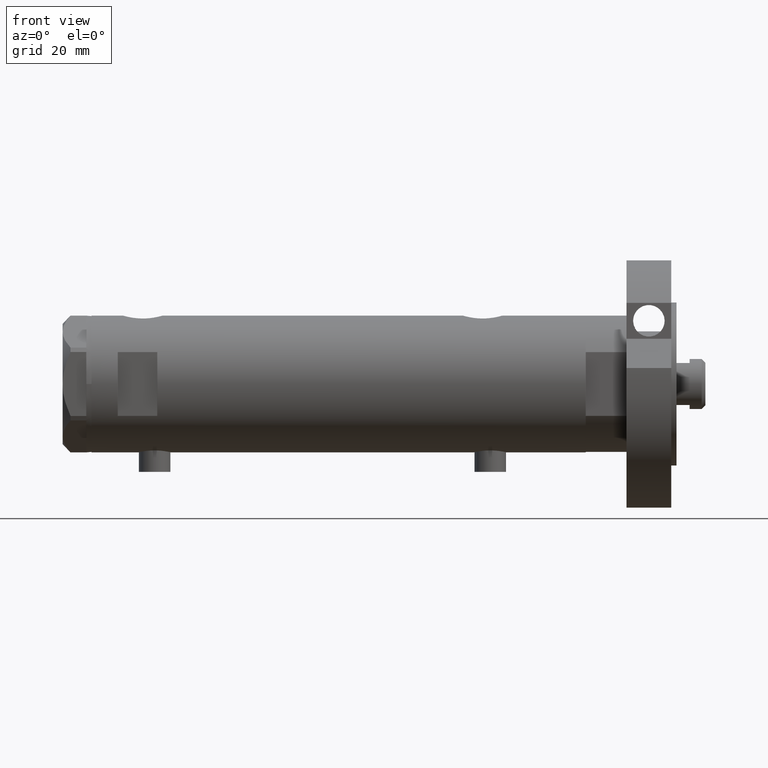
[diagram: clean part render]
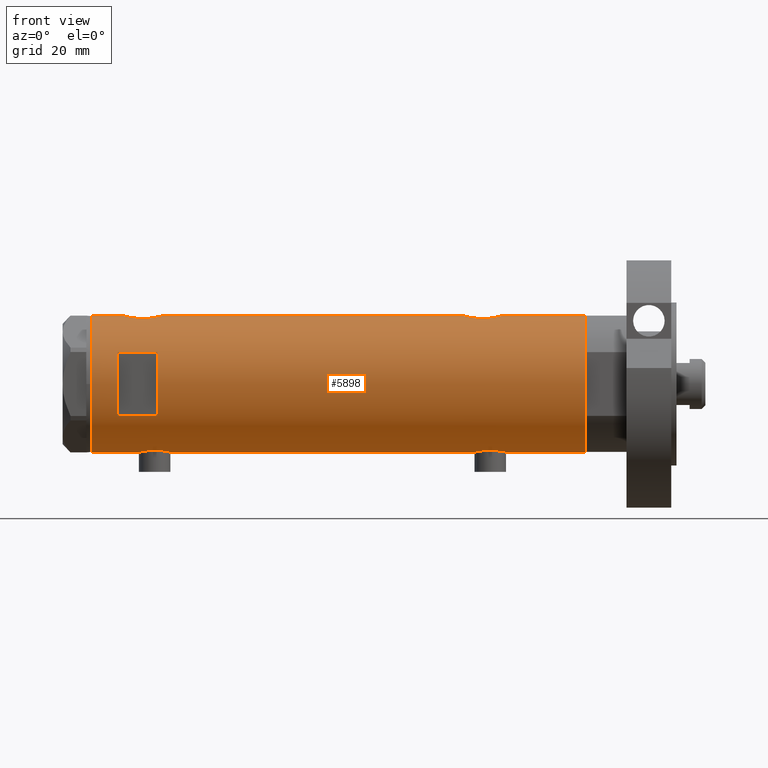
[diagram: same view with one face highlighted and labeled with its STEP entity id]
A machine part, front view. The second image highlights one B-rep face of the part: STEP entity #5898.
In plain terms, the highlighted cylindrical surface (partial cylindrical patch) has radius 26 mm, axis along (-1, -0, 0).
Its self-contained STEP definition (entity closure, byte-faithful):
#56 = EDGE_CURVE ( 'NONE', #3901, #803, #4986, .T. ) ;
#107 = CARTESIAN_POINT ( 'NONE',  ( -25.59645788645699227, -4.565358797148518555, 74.22330529203480864 ) ) ;
#108 = CARTESIAN_POINT ( 'NONE',  ( -26.00000000000000711, -0.4086738135806026739, -63.90000000000002700 ) ) ;
#125 = CARTESIAN_POINT ( 'NONE',  ( 26.00000000000001066, -0.4910237949823165748, 81.95000000000001705 ) ) ;
#186 = CARTESIAN_POINT ( 'NONE',  ( 25.52567976009756379, -4.956266804246106439, 80.10019927459092060 ) ) ;
#201 = DIRECTION ( 'NONE',  ( 0.000000000000000000, 0.000000000000000000, 1.000000000000000000 ) ) ;
#202 = CARTESIAN_POINT ( 'NONE',  ( -26.00000000000000355, -0.4144764235405725139, -51.39999999999999147 ) ) ;
#216 = ORIENTED_EDGE ( 'NONE', *, *, #5786, .F. ) ;
#227 = CARTESIAN_POINT ( 'NONE',  ( -26.00000000000000355, 3.184077527325983904E-15, 63.70000000000000995 ) ) ;
#252 = VERTEX_POINT ( 'NONE', #5235 ) ;
#266 = CARTESIAN_POINT ( 'NONE',  ( 26.00000000000000355, 0.000000000000000000, 93.95000000000000284 ) ) ;
#286 = CARTESIAN_POINT ( 'NONE',  ( -26.00000000000000355, 3.184081677783118585E-15, -93.95000000000000284 ) ) ;
#308 = CARTESIAN_POINT ( 'NONE',  ( -25.87202607293667000, -2.583404329177994008, -63.34473666854513141 ) ) ;
#343 = ORIENTED_EDGE ( 'NONE', *, *, #4487, .F. ) ;
#414 = CARTESIAN_POINT ( 'NONE',  ( 25.59500516383205948, -4.575229401795803952, 68.50212244934583339 ) ) ;
#427 = CARTESIAN_POINT ( 'NONE',  ( 24.91324908721445652, -7.438459228814655155, -53.75982500625809024 ) ) ;
#458 = CARTESIAN_POINT ( 'NONE',  ( 24.89475831528845262, -7.500067228253130658, -55.24337428253536331 ) ) ;
#463 = CARTESIAN_POINT ( 'NONE',  ( -25.85288666140180069, -2.767917424206677524, 64.34257790010329359 ) ) ;
#576 = VERTEX_POINT ( 'NONE', #4445 ) ;
#588 = CARTESIAN_POINT ( 'NONE',  ( -25.24022290516698774, -6.239518219915429320, 69.53402784061570685 ) ) ;
#603 = EDGE_CURVE ( 'NONE', #4427, #4972, #5481, .T. ) ;
#625 = CARTESIAN_POINT ( 'NONE',  ( -25.31551596256916525, -5.928819821281963165, 67.92988508095919542 ) ) ;
#640 = EDGE_CURVE ( 'NONE', #3102, #757, #5528, .T. ) ;
#693 = CARTESIAN_POINT ( 'NONE',  ( -25.85288666140180069, -2.767917424206677968, -63.25742209989670783 ) ) ;
#727 = CARTESIAN_POINT ( 'NONE',  ( -25.95206678899177888, -1.628763264760264118, -51.60199186669784410 ) ) ;
#757 = VERTEX_POINT ( 'NONE', #5266 ) ;
#765 = CARTESIAN_POINT ( 'NONE',  ( 25.89059789403177447, -2.425642437452257383, -47.63622552757698969 ) ) ;
#786 = CARTESIAN_POINT ( 'NONE',  ( 25.17510548814052740, -6.503212750695460009, 78.21761787815347589 ) ) ;
#801 = CARTESIAN_POINT ( 'NONE',  ( -25.52274351135604391, -4.960534548086211970, -53.84248254659268440 ) ) ;
#803 = VERTEX_POINT ( 'NONE', #227 ) ;
#810 = EDGE_CURVE ( 'NONE', #4618, #2848, #2136, .T. ) ;
#814 = CARTESIAN_POINT ( 'NONE',  ( 25.52449676677459678, -4.953491517965891155, 68.81325508665931068 ) ) ;
#817 = DIRECTION ( 'NONE',  ( -0.000000000000000000, -4.625929269271486900E-15, 1.000000000000000000 ) ) ;
#850 = EDGE_CURVE ( 'NONE', #576, #2848, #4231, .T. ) ;
#852 = CARTESIAN_POINT ( 'NONE',  ( 26.00000000000000355, -2.747580718823405516E-15, 66.95000000000000284 ) ) ;
#857 = VERTEX_POINT ( 'NONE', #3882 ) ;
#884 = CARTESIAN_POINT ( 'NONE',  ( 25.11342038069226845, -6.734617143597199984, 77.78770695790493050 ) ) ;
#888 = EDGE_LOOP ( 'NONE', ( #216, #4789, #6417, #3736, #6316, #2789, #4370, #2079, #5296, #6446, #6039, #6016 ) ) ;
#908 = CARTESIAN_POINT ( 'NONE',  ( 26.00000000000000711, -0.4982617809740558790, 66.95000000000001705 ) ) ;
#917 = CARTESIAN_POINT ( 'NONE',  ( 24.92415241886515176, -7.401968919186680651, -53.51676462555185054 ) ) ;
#952 = CARTESIAN_POINT ( 'NONE',  ( -25.78943824387523520, -3.306687742228914484, 64.64245861216537037 ) ) ;
#1000 = DIRECTION ( 'NONE',  ( 0.000000000000000000, 0.000000000000000000, 1.000000000000000000 ) ) ;
#1037 = DIRECTION ( 'NONE',  ( 1.000000000000000000, 0.000000000000000000, 0.000000000000000000 ) ) ;
#1089 = CARTESIAN_POINT ( 'NONE',  ( -25.38662204309616399, -5.616507264474307703, 72.72199377719323365 ) ) ;
#1090 = DIRECTION ( 'NONE',  ( 0.000000000000000000, 0.000000000000000000, 1.000000000000000000 ) ) ;
#1119 = CARTESIAN_POINT ( 'NONE',  ( -25.25769689814630325, -6.168504065326069430, 68.92353364703252794 ) ) ;
#1210 = CARTESIAN_POINT ( 'NONE',  ( 26.00000000000000355, -3.975028449552882818E-20, 81.94999999999998863 ) ) ;
#1217 = VERTEX_POINT ( 'NONE', #1630 ) ;
#1224 = CARTESIAN_POINT ( 'NONE',  ( -25.81160981652327635, -3.129523010631801938, -63.06392973722074657 ) ) ;
#1239 = CARTESIAN_POINT ( 'NONE',  ( -12.12435565298214080, -23.00000000000000355, 68.94999999999998863 ) ) ;
#1258 = CARTESIAN_POINT ( 'NONE',  ( 26.00000000000000355, 0.000000000000000000, -93.95000000000000284 ) ) ;
#1259 = CARTESIAN_POINT ( 'NONE',  ( -25.23758491649666880, -6.250144606721711682, -57.23988300428195686 ) ) ;
#1275 = CIRCLE ( 'NONE', #5271, 26.00000000000000355 ) ;
#1282 = CARTESIAN_POINT ( 'NONE',  ( 25.03461301890608226, -7.019803056070506031, 71.79816816893104203 ) ) ;
#1314 = CARTESIAN_POINT ( 'NONE',  ( 25.17393786935995692, -6.507882790539422757, 70.68962666655967553 ) ) ;
#1327 = CARTESIAN_POINT ( 'NONE',  ( -25.59645788645699582, -4.565358797148525660, -53.37669470796521409 ) ) ;
#1342 = CARTESIAN_POINT ( 'NONE',  ( 24.89478872726945724, -7.499966281647698629, 74.69821850634782834 ) ) ;
#1347 = VECTOR ( 'NONE', #3616, 1000.000000000000000 ) ;
#1355 = CARTESIAN_POINT ( 'NONE',  ( 25.98569226047905190, -0.9886551788957271825, -62.20082376600176133 ) ) ;
#1389 = CARTESIAN_POINT ( 'NONE',  ( 26.00000000000000355, 3.343657407582877388E-16, -62.25000000000000000 ) ) ;
#1392 = ORIENTED_EDGE ( 'NONE', *, *, #640, .F. ) ;
#1405 = CARTESIAN_POINT ( 'NONE',  ( 25.27534302296962565, -6.097250460344746159, 78.82409613097077283 ) ) ;
#1407 = B_SPLINE_CURVE_WITH_KNOTS ( 'NONE', 3,
 ( #4457, #6449, #3960, #5953, #1446, #4975, #463, #2476, #952, #2970, #6476, #1977, #4057, #5033, #4517, #625, #1545, #1119, #6084, #588, #3131, #6152, #4085, #2605, #6052, #1089, #5069, #3067, #1514, #2544, #107, #4157, #4551, #3498, #3032, #2012, #5591, #4651, #5493, #5621, #2508, #3558 ),
 .UNSPECIFIED., .F., .F.,
 ( 4, 2, 2, 2, 2, 2, 2, 2, 2, 2, 2, 2, 2, 2, 2, 2, 2, 2, 2, 2, 4 ),
 ( 0.01961238453869444676, 0.02083783025472769543, 0.02206327597076094410, 0.02267599882877755976, 0.02328872168679417543, 0.02451416740282743104, 0.02573961311886067971, 0.02696505883489393532, 0.02819050455092719093, 0.02880322740894379618, 0.02941595026696040144, 0.03064139598299361195, 0.03186684169902682245, 0.03309228741506003296, 0.03370501027307663822, 0.03431773313109324347, 0.03493045598910984872, 0.03554317884712646092, 0.03676862456315967143, 0.03799407027919288193, 0.03921951599522609938 ),
 .UNSPECIFIED. ) ;
#1416 = CARTESIAN_POINT ( 'NONE',  ( 25.52567976009756379, -4.956266804246105551, -49.09980072540905383 ) ) ;
#1424 = EDGE_CURVE ( 'NONE', #4972, #1987, #5353, .T. ) ;
#1446 = CARTESIAN_POINT ( 'NONE',  ( -25.92425332714051933, -2.018894156999441858, 64.02103879324673130 ) ) ;
#1465 = VECTOR ( 'NONE', #3996, 1000.000000000000000 ) ;
#1467 = CARTESIAN_POINT ( 'NONE',  ( -26.00000000000000355, 3.184081677783118585E-15, -93.95000000000000284 ) ) ;
#1473 = CARTESIAN_POINT ( 'NONE',  ( 25.52449676677459678, -4.953491517965876945, -60.38674491334074190 ) ) ;
#1514 = CARTESIAN_POINT ( 'NONE',  ( -25.52274351135604746, -4.960534548086194206, 73.75751745340734544 ) ) ;
#1545 = CARTESIAN_POINT ( 'NONE',  ( -25.28680988956730147, -6.048472998962280300, 68.32372305811757940 ) ) ;
#1570 = CARTESIAN_POINT ( 'NONE',  ( 0.000000000000000000, 0.000000000000000000, 83.95000000000000284 ) ) ;
#1579 = DIRECTION ( 'NONE',  ( 0.000000000000000000, 0.000000000000000000, 1.000000000000000000 ) ) ;
#1581 = DIRECTION ( 'NONE',  ( 0.000000000000000000, 0.000000000000000000, 1.000000000000000000 ) ) ;
#1630 = CARTESIAN_POINT ( 'NONE',  ( 12.12435565298214080, -23.00000000000000355, 68.94999999999998863 ) ) ;
#1687 = CARTESIAN_POINT ( 'NONE',  ( -25.31551596256916170, -5.928819821281962277, -59.67011491904084153 ) ) ;
#1725 = CARTESIAN_POINT ( 'NONE',  ( -25.85385060263651269, -2.778671585188182913, -52.03685548695762719 ) ) ;
#1742 = CARTESIAN_POINT ( 'NONE',  ( 25.78993643992928853, -3.329561377902403585, 81.18821560278736627 ) ) ;
#1755 = CARTESIAN_POINT ( 'NONE',  ( -25.57228991600092627, -4.705691472451703383, -61.78339690124654027 ) ) ;
#1773 = CARTESIAN_POINT ( 'NONE',  ( 24.91324908721446008, -7.438459228814657820, 75.44017499374190550 ) ) ;
#1789 = B_SPLINE_CURVE_WITH_KNOTS ( 'NONE', 3,
 ( #4261, #3270, #6261, #5280, #765, #2782, #3983, #5976, #1416, #2387, #2413, #2363, #4856, #2908, #4450, #4889, #3407, #917, #427, #4420, #6384, #458, #6444, #3430, #6414, #5347, #5431, #6357, #5454, #5858, #2963, #5893, #1473, #4913, #1916, #3373, #1945, #5380, #5926, #1355, #6468, #1389 ),
 .UNSPECIFIED., .F., .F.,
 ( 4, 2, 2, 2, 2, 2, 2, 2, 2, 2, 2, 2, 2, 2, 2, 2, 2, 2, 2, 2, 4 ),
 ( 0.02357432247332888128, 0.02504731828495719570, 0.02652031409658551359, 0.02799330990821382800, 0.02946630571984214589, 0.03020280362565630136, 0.03093930153147046030, 0.03241229734309879207, 0.03388529315472712383, 0.03462179106054129318, 0.03535828896635545560, 0.03683128477798380818, 0.03756778268379799834, 0.03830428058961218157, 0.03977727640124056885, 0.04125027221286896306, 0.04198677011868315323, 0.04272326802449734340, 0.04419626383612573067, 0.04566925964775411795, 0.04714225545938250522 ),
 .UNSPECIFIED. ) ;
#1791 = CARTESIAN_POINT ( 'NONE',  ( -25.81232680456766815, -3.137210741985122286, -52.22886342778421209 ) ) ;
#1810 = CARTESIAN_POINT ( 'NONE',  ( 24.90947356773250121, -7.451722770779340088, 73.46809158171848253 ) ) ;
#1845 = CARTESIAN_POINT ( 'NONE',  ( 24.92415241886516952, -7.401968919186677986, 75.68323537444817362 ) ) ;
#1868 = CARTESIAN_POINT ( 'NONE',  ( 26.00000000000000355, 3.343657407582877388E-16, -62.25000000000000000 ) ) ;
#1871 = CARTESIAN_POINT ( 'NONE',  ( 25.98569226047905900, -0.9886551788957337328, 66.99917623399824151 ) ) ;
#1874 = CARTESIAN_POINT ( 'NONE',  ( -26.00000000000000355, 3.184081677783118585E-15, 93.95000000000000284 ) ) ;
#1916 = CARTESIAN_POINT ( 'NONE',  ( 25.62983961939740141, -4.376509667782454649, -60.84558499042960733 ) ) ;
#1945 = CARTESIAN_POINT ( 'NONE',  ( 25.78902964777116935, -3.336582972512946554, -61.48475840457738428 ) ) ;
#1977 = CARTESIAN_POINT ( 'NONE',  ( -25.57228991600092272, -4.705691472451695390, 65.81660309875348958 ) ) ;
#1987 = VERTEX_POINT ( 'NONE', #266 ) ;
#2012 = CARTESIAN_POINT ( 'NONE',  ( -25.81232680456766815, -3.137210741985116513, 75.37113657221577512 ) ) ;
#2041 = LINE ( 'NONE', #6116, #4090 ) ;
#2079 = ORIENTED_EDGE ( 'NONE', *, *, #1424, .F. ) ;
#2113 = CARTESIAN_POINT ( 'NONE',  ( -25.99036913299956097, -0.8159609457881454864, -63.86031143031890878 ) ) ;
#2117 = EDGE_CURVE ( 'NONE', #857, #5414, #2041, .T. ) ;
#2136 = LINE ( 'NONE', #3647, #1347 ) ;
#2193 = AXIS2_PLACEMENT_3D ( 'NONE', #4153, #1581, #3524 ) ;
#2204 = CARTESIAN_POINT ( 'NONE',  ( 25.41756773306325101, -5.475260495868973898, 79.58140873656945757 ) ) ;
#2219 = CARTESIAN_POINT ( 'NONE',  ( -26.00000000000000355, -8.503928565788675107E-16, -51.39999999999999858 ) ) ;
#2259 = LINE ( 'NONE', #1258, #2946 ) ;
#2260 = CARTESIAN_POINT ( 'NONE',  ( -25.74330903162726614, -3.648508829439221390, -52.57132285284203022 ) ) ;
#2292 = CARTESIAN_POINT ( 'NONE',  ( -25.78943824387522454, -3.306687742228910487, -62.95754138783468790 ) ) ;
#2301 = DIRECTION ( 'NONE',  ( 0.000000000000000000, 0.000000000000000000, 1.000000000000000000 ) ) ;
#2310 = CARTESIAN_POINT ( 'NONE',  ( 25.88994451797512397, -2.432613607265604383, 67.33859031286799279 ) ) ;
#2326 = CARTESIAN_POINT ( 'NONE',  ( -25.72076778631230454, -3.815670258243488266, -62.61687810531882548 ) ) ;
#2346 = CARTESIAN_POINT ( 'NONE',  ( 25.62983961939740496, -4.376509667782460866, 68.35441500957041683 ) ) ;
#2363 = CARTESIAN_POINT ( 'NONE',  ( 25.31004928890824957, -5.952041021437452173, -50.18019400116494211 ) ) ;
#2387 = CARTESIAN_POINT ( 'NONE',  ( 25.41756773306326522, -5.475260495868973898, -49.61859126343051685 ) ) ;
#2413 = CARTESIAN_POINT ( 'NONE',  ( 25.38109653984943748, -5.641393955635659374, -49.80180907551250158 ) ) ;
#2448 = CARTESIAN_POINT ( 'NONE',  ( -12.12435565298214080, -23.00000000000000355, -93.95000000000000284 ) ) ;
#2476 = CARTESIAN_POINT ( 'NONE',  ( -25.81160981652327635, -3.129523010631801494, 64.53607026277929037 ) ) ;
#2508 = CARTESIAN_POINT ( 'NONE',  ( -25.99999999999999289, -0.4144764235405741237, 76.19999999999998863 ) ) ;
#2525 = DIRECTION ( 'NONE',  ( 0.000000000000000000, 0.000000000000000000, 1.000000000000000000 ) ) ;
#2544 = CARTESIAN_POINT ( 'NONE',  ( -25.57167894663063024, -4.701762988462085069, 74.07280450192421029 ) ) ;
#2560 = CYLINDRICAL_SURFACE ( 'NONE', #6342, 26.00000000000000355 ) ;
#2605 = CARTESIAN_POINT ( 'NONE',  ( -25.28632996747172967, -6.050474653715409268, 71.56911870841541656 ) ) ;
#2643 = LINE ( 'NONE', #4122, #5282 ) ;
#2707 = CARTESIAN_POINT ( 'NONE',  ( -25.28632996747171546, -6.050474653715422590, -56.03088129158463460 ) ) ;
#2742 = CARTESIAN_POINT ( 'NONE',  ( 26.00000000000000355, -3.975025925197986111E-20, -47.25000000000000000 ) ) ;
#2782 = CARTESIAN_POINT ( 'NONE',  ( 25.78993643992928853, -3.329561377902402697, -48.01178439721262947 ) ) ;
#2789 = ORIENTED_EDGE ( 'NONE', *, *, #850, .F. ) ;
#2813 = CARTESIAN_POINT ( 'NONE',  ( -25.57167894663062668, -4.701762988462101056, -53.52719549807584087 ) ) ;
#2848 = VERTEX_POINT ( 'NONE', #5524 ) ;
#2908 = CARTESIAN_POINT ( 'NONE',  ( 25.17510548814053095, -6.503212750695464450, -50.98238212184652696 ) ) ;
#2931 = DIRECTION ( 'NONE',  ( 0.000000000000000000, 0.000000000000000000, 1.000000000000000000 ) ) ;
#2946 = VECTOR ( 'NONE', #201, 1000.000000000000000 ) ;
#2963 = CARTESIAN_POINT ( 'NONE',  ( 25.38125492692910612, -5.649348210287294059, -59.70694334346394072 ) ) ;
#2970 = CARTESIAN_POINT ( 'NONE',  ( -25.72076778631230098, -3.815670258243490043, 64.98312189468120437 ) ) ;
#3032 = CARTESIAN_POINT ( 'NONE',  ( -25.74330903162726258, -3.648508829439215617, 75.02867714715800673 ) ) ;
#3067 = CARTESIAN_POINT ( 'NONE',  ( -25.49846181844014481, -5.083495422175113632, 73.59177503382601060 ) ) ;
#3090 = CARTESIAN_POINT ( 'NONE',  ( -26.00000000000000355, 3.184077527250253257E-15, -63.90000000000001279 ) ) ;
#3102 = VERTEX_POINT ( 'NONE', #6198 ) ;
#3131 = CARTESIAN_POINT ( 'NONE',  ( -25.23763877699557412, -6.249927116972443741, 69.74164472334535958 ) ) ;
#3188 = CARTESIAN_POINT ( 'NONE',  ( 25.89059789403177447, -2.425642437452259603, 81.56377447242300605 ) ) ;
#3196 = EDGE_CURVE ( 'NONE', #757, #5263, #6362, .T. ) ;
#3232 = CARTESIAN_POINT ( 'NONE',  ( -25.71926338401910428, -3.813768894920914754, -52.69427860166185695 ) ) ;
#3234 = EDGE_CURVE ( 'NONE', #803, #4427, #1407, .T. ) ;
#3270 = CARTESIAN_POINT ( 'NONE',  ( 26.00000000000001066, -0.4910237949823163528, -47.25000000000001421 ) ) ;
#3308 = CARTESIAN_POINT ( 'NONE',  ( -25.25769689814629970, -6.168504065326076535, -58.67646635296745927 ) ) ;
#3327 = CARTESIAN_POINT ( 'NONE',  ( 24.89475831528844907, -7.500067228253129770, 73.95662571746466085 ) ) ;
#3349 = AXIS2_PLACEMENT_3D ( 'NONE', #1570, #5538, #1037 ) ;
#3359 = CARTESIAN_POINT ( 'NONE',  ( 24.89854802586675575, -7.487520416261734368, 74.94815683577905929 ) ) ;
#3373 = CARTESIAN_POINT ( 'NONE',  ( 25.72912156655465665, -3.765948295762491238, -61.25442975399222689 ) ) ;
#3407 = CARTESIAN_POINT ( 'NONE',  ( 24.96672817551788270, -7.257586026187393458, -52.79615800278703119 ) ) ;
#3430 = CARTESIAN_POINT ( 'NONE',  ( 24.95200646071794282, -7.307522494171283967, -56.45607564187280758 ) ) ;
#3434 = EDGE_CURVE ( 'NONE', #576, #1987, #2259, .T. ) ;
#3444 = FACE_OUTER_BOUND ( 'NONE', #888, .T. ) ;
#3447 = CARTESIAN_POINT ( 'NONE',  ( -26.00000000000000355, 3.184081677783118585E-15, -93.95000000000000284 ) ) ;
#3453 = DIRECTION ( 'NONE',  ( 1.000000000000000000, 0.000000000000000000, 0.000000000000000000 ) ) ;
#3498 = CARTESIAN_POINT ( 'NONE',  ( -25.71926338401910073, -3.813768894920909425, 74.90572139833817289 ) ) ;
#3524 = DIRECTION ( 'NONE',  ( 1.000000000000000000, 0.000000000000000000, 0.000000000000000000 ) ) ;
#3558 = CARTESIAN_POINT ( 'NONE',  ( -26.00000000000000355, 1.227111019500118713E-15, 76.20000000000001705 ) ) ;
#3603 = B_SPLINE_CURVE_WITH_KNOTS ( 'NONE', 3,
 ( #5102, #108, #2113, #5134, #4158, #308, #693, #1224, #2292, #2326, #6189, #1755, #4717, #3838, #5827, #1687, #3697, #3308, #3760, #5751, #5240, #1259, #4222, #2707, #4794, #4293, #6290, #4757, #801, #2813, #1327, #5316, #5688, #3232, #2260, #1791, #1725, #3733, #727, #4823, #202, #2219 ),
 .UNSPECIFIED., .F., .F.,
 ( 4, 2, 2, 2, 2, 2, 2, 2, 2, 2, 2, 2, 2, 2, 2, 2, 2, 2, 2, 2, 4 ),
 ( 0.01961238453869445023, 0.02083783025472770584, 0.02206327597076096492, 0.02267599882877758405, 0.02328872168679420665, 0.02451416740282742757, 0.02573961311886065889, 0.02696505883489389022, 0.02819050455092712501, 0.02880322740894373373, 0.02941595026696033899, 0.03064139598299355643, 0.03186684169902676694, 0.03309228741505997745, 0.03370501027307658271, 0.03431773313109319490, 0.03493045598910980015, 0.03554317884712640541, 0.03676862456315962979, 0.03799407027919285418, 0.03921951599522608550 ),
 .UNSPECIFIED. ) ;
#3616 = DIRECTION ( 'NONE',  ( 0.000000000000000000, 0.000000000000000000, 1.000000000000000000 ) ) ;
#3634 = EDGE_CURVE ( 'NONE', #252, #857, #1275, .T. ) ;
#3647 = CARTESIAN_POINT ( 'NONE',  ( 26.00000000000000355, 0.000000000000000000, -93.95000000000000284 ) ) ;
#3697 = CARTESIAN_POINT ( 'NONE',  ( -25.28680988956729436, -6.048472998962281189, -59.27627694188244334 ) ) ;
#3712 = VECTOR ( 'NONE', #2301, 1000.000000000000000 ) ;
#3733 = CARTESIAN_POINT ( 'NONE',  ( -25.92364458890659762, -2.026637113504532905, -51.72369009308527410 ) ) ;
#3736 = ORIENTED_EDGE ( 'NONE', *, *, #4636, .F. ) ;
#3760 = CARTESIAN_POINT ( 'NONE',  ( -25.25025691038241860, -6.198787452305317025, -58.47441165395796503 ) ) ;
#3783 = CARTESIAN_POINT ( 'NONE',  ( 25.01107424167501136, -7.102941973849612012, 72.02937151337422961 ) ) ;
#3822 = CARTESIAN_POINT ( 'NONE',  ( 24.96672817551789691, -7.257586026187390793, 76.40384199721299296 ) ) ;
#3838 = CARTESIAN_POINT ( 'NONE',  ( -25.42977453177915592, -5.420307583276862573, -60.78812271793365340 ) ) ;
#3882 = CARTESIAN_POINT ( 'NONE',  ( 26.00000000000000355, 0.000000000000000000, -93.95000000000000284 ) ) ;
#3887 = CARTESIAN_POINT ( 'NONE',  ( -26.00000000000000355, -8.503928565788675107E-16, -51.39999999999999858 ) ) ;
#3901 = VERTEX_POINT ( 'NONE', #3887 ) ;
#3939 = EDGE_CURVE ( 'NONE', #5263, #1217, #4217, .T. ) ;
#3960 = CARTESIAN_POINT ( 'NONE',  ( -25.99036913299955742, -0.8159609457881448202, 63.73968856968108554 ) ) ;
#3983 = CARTESIAN_POINT ( 'NONE',  ( 25.72873412774685775, -3.768477344985552424, -48.24712539855535454 ) ) ;
#3996 = DIRECTION ( 'NONE',  ( -0.000000000000000000, -0.000000000000000000, -1.000000000000000000 ) ) ;
#4057 = CARTESIAN_POINT ( 'NONE',  ( -25.52190669608696183, -4.968444991210429151, 66.13658907807516130 ) ) ;
#4085 = CARTESIAN_POINT ( 'NONE',  ( -25.24765475072630139, -6.209883762780004091, 70.76678184355101564 ) ) ;
#4090 = VECTOR ( 'NONE', #1579, 1000.000000000000000 ) ;
#4122 = CARTESIAN_POINT ( 'NONE',  ( 12.12435565298214080, -23.00000000000000355, -93.95000000000000284 ) ) ;
#4143 = CARTESIAN_POINT ( 'NONE',  ( 25.98599366666249466, -0.9828433289544105111, 81.90188401723473532 ) ) ;
#4153 = CARTESIAN_POINT ( 'NONE',  ( 0.000000000000000000, 0.000000000000000000, 93.95000000000000284 ) ) ;
#4157 = CARTESIAN_POINT ( 'NONE',  ( -25.64593536028936427, -4.278686337618962554, 74.51031602960878786 ) ) ;
#4158 = CARTESIAN_POINT ( 'NONE',  ( -25.92425332714051223, -2.018894156999442746, -63.57896120675329854 ) ) ;
#4217 = CIRCLE ( 'NONE', #5275, 26.00000000000000355 ) ;
#4222 = CARTESIAN_POINT ( 'NONE',  ( -25.24765475072630139, -6.209883762780014749, -56.83321815644903552 ) ) ;
#4231 = B_SPLINE_CURVE_WITH_KNOTS ( 'NONE', 3,
 ( #1210, #125, #4143, #6139, #3188, #1742, #5195, #4703, #186, #2204, #4311, #4378, #1405, #786, #884, #6309, #3822, #1845, #1773, #3359, #1342, #3327, #1810, #5815, #5304, #3783, #1282, #5332, #1314, #5846, #4927, #6372, #814, #414, #2346, #5878, #5367, #2310, #6400, #1871, #908, #852 ),
 .UNSPECIFIED., .F., .F.,
 ( 4, 2, 2, 2, 2, 2, 2, 2, 2, 2, 2, 2, 2, 2, 2, 2, 2, 2, 2, 2, 4 ),
 ( 0.02357432247332884312, 0.02504731828495717835, 0.02652031409658551359, 0.02799330990821385229, 0.02946630571984218752, 0.03020280362565635340, 0.03093930153147052275, 0.03241229734309888921, 0.03388529315472726261, 0.03462179106054144584, 0.03535828896635563601, 0.03683128477798400247, 0.03756778268379818569, 0.03830428058961236892, 0.03977727640124074232, 0.04125027221286911572, 0.04198677011868327813, 0.04272326802449745442, 0.04419626383612577231, 0.04566925964775409713, 0.04714225545938241502 ),
 .UNSPECIFIED. ) ;
#4261 = CARTESIAN_POINT ( 'NONE',  ( 26.00000000000000355, -3.975025925197986111E-20, -47.25000000000000000 ) ) ;
#4293 = CARTESIAN_POINT ( 'NONE',  ( -25.38662204309616754, -5.616507264474315697, -54.87800622280676777 ) ) ;
#4311 = CARTESIAN_POINT ( 'NONE',  ( 25.38109653984943748, -5.641393955635657598, 79.39819092448753679 ) ) ;
#4339 = EDGE_LOOP ( 'NONE', ( #4508, #4932, #1392, #343 ) ) ;
#4370 = ORIENTED_EDGE ( 'NONE', *, *, #3434, .T. ) ;
#4378 = CARTESIAN_POINT ( 'NONE',  ( 25.31004928890825312, -5.952041021437449508, 79.01980599883506784 ) ) ;
#4420 = CARTESIAN_POINT ( 'NONE',  ( 24.89854802586676286, -7.487520416261737921, -54.25184316422095065 ) ) ;
#4427 = VERTEX_POINT ( 'NONE', #5299 ) ;
#4445 = CARTESIAN_POINT ( 'NONE',  ( 26.00000000000000355, -3.975028449552882818E-20, 81.94999999999998863 ) ) ;
#4450 = CARTESIAN_POINT ( 'NONE',  ( 25.11342038069227200, -6.734617143597207978, -51.41229304209507234 ) ) ;
#4457 = CARTESIAN_POINT ( 'NONE',  ( -26.00000000000000355, 3.184077527325983904E-15, 63.70000000000000995 ) ) ;
#4487 = EDGE_CURVE ( 'NONE', #1217, #3102, #2643, .T. ) ;
#4508 = ORIENTED_EDGE ( 'NONE', *, *, #3939, .F. ) ;
#4517 = CARTESIAN_POINT ( 'NONE',  ( -25.38744165544136777, -5.612847683295913548, 67.17012416761525628 ) ) ;
#4551 = CARTESIAN_POINT ( 'NONE',  ( -25.67063510297210271, -4.128418051804843003, 74.64682575271267240 ) ) ;
#4566 = EDGE_CURVE ( 'NONE', #4795, #3901, #3603, .T. ) ;
#4617 = VECTOR ( 'NONE', #1000, 1000.000000000000000 ) ;
#4618 = VERTEX_POINT ( 'NONE', #2742 ) ;
#4636 = EDGE_CURVE ( 'NONE', #4618, #5414, #1789, .T. ) ;
#4651 = CARTESIAN_POINT ( 'NONE',  ( -25.92364458890660472, -2.026637113504541343, 75.87630990691478416 ) ) ;
#4703 = CARTESIAN_POINT ( 'NONE',  ( 25.59665538672496155, -4.580438224580674067, 80.40889127712388529 ) ) ;
#4717 = CARTESIAN_POINT ( 'NONE',  ( -25.52190669608696183, -4.968444991210430040, -61.46341092192486144 ) ) ;
#4757 = CARTESIAN_POINT ( 'NONE',  ( -25.49846181844014126, -5.083495422175140277, -54.00822496617402635 ) ) ;
#4789 = ORIENTED_EDGE ( 'NONE', *, *, #3634, .T. ) ;
#4794 = CARTESIAN_POINT ( 'NONE',  ( -25.31538696791482224, -5.929326713517960812, -55.63203367791898302 ) ) ;
#4795 = VERTEX_POINT ( 'NONE', #3090 ) ;
#4823 = CARTESIAN_POINT ( 'NONE',  ( -25.99009752186833211, -0.8230863847107499076, -51.44082928593319082 ) ) ;
#4856 = CARTESIAN_POINT ( 'NONE',  ( 25.27534302296961854, -6.097250460344746159, -50.37590386902925843 ) ) ;
#4888 = CARTESIAN_POINT ( 'NONE',  ( 0.000000000000000000, 0.000000000000000000, -93.95000000000000284 ) ) ;
#4889 = CARTESIAN_POINT ( 'NONE',  ( 25.00829008792691255, -7.115081037226466343, -52.32698996259181001 ) ) ;
#4913 = CARTESIAN_POINT ( 'NONE',  ( 25.59500516383205593, -4.575229401795787965, -60.69787755065421919 ) ) ;
#4927 = CARTESIAN_POINT ( 'NONE',  ( 25.38125492692910967, -5.649348210287292282, 69.49305665653604080 ) ) ;
#4932 = ORIENTED_EDGE ( 'NONE', *, *, #3196, .F. ) ;
#4961 = FACE_BOUND ( 'NONE', #4339, .T. ) ;
#4972 = VERTEX_POINT ( 'NONE', #1874 ) ;
#4975 = CARTESIAN_POINT ( 'NONE',  ( -25.87202607293667000, -2.583404329177993120, 64.25526333145488422 ) ) ;
#4986 = LINE ( 'NONE', #3447, #4617 ) ;
#5033 = CARTESIAN_POINT ( 'NONE',  ( -25.42977453177915592, -5.420307583276858132, 66.81187728206637644 ) ) ;
#5069 = CARTESIAN_POINT ( 'NONE',  ( -25.42883439573799720, -5.424786127492320809, 73.08081457260909986 ) ) ;
#5102 = CARTESIAN_POINT ( 'NONE',  ( -26.00000000000000355, 3.184077527250253257E-15, -63.90000000000001279 ) ) ;
#5134 = CARTESIAN_POINT ( 'NONE',  ( -25.95218276861526618, -1.627663810194431626, -63.69850980387604977 ) ) ;
#5195 = CARTESIAN_POINT ( 'NONE',  ( 25.72873412774685775, -3.768477344985552424, 80.95287460144460567 ) ) ;
#5235 = CARTESIAN_POINT ( 'NONE',  ( -26.00000000000000355, 3.184081677783118585E-15, -93.95000000000000284 ) ) ;
#5240 = CARTESIAN_POINT ( 'NONE',  ( -25.23763877699556701, -6.249927116972449070, -57.85835527665467026 ) ) ;
#5263 = VERTEX_POINT ( 'NONE', #1239 ) ;
#5266 = CARTESIAN_POINT ( 'NONE',  ( -12.12435565298214080, -23.00000000000000355, 83.95000000000000284 ) ) ;
#5271 = AXIS2_PLACEMENT_3D ( 'NONE', #4888, #2931, #3453 ) ;
#5275 = AXIS2_PLACEMENT_3D ( 'NONE', #5337, #817, #5400 ) ;
#5280 = CARTESIAN_POINT ( 'NONE',  ( 25.93085545515512891, -1.956676574435509686, -47.49272963169730843 ) ) ;
#5282 = VECTOR ( 'NONE', #1090, 1000.000000000000000 ) ;
#5296 = ORIENTED_EDGE ( 'NONE', *, *, #603, .F. ) ;
#5299 = CARTESIAN_POINT ( 'NONE',  ( -26.00000000000000355, 1.227111019500118713E-15, 76.20000000000001705 ) ) ;
#5304 = CARTESIAN_POINT ( 'NONE',  ( 24.96970063328117462, -7.247045583599690310, 72.50280785145199047 ) ) ;
#5316 = CARTESIAN_POINT ( 'NONE',  ( -25.64593536028936782, -4.278686337618967883, -53.08968397039122777 ) ) ;
#5332 = CARTESIAN_POINT ( 'NONE',  ( 25.11243836838846022, -6.738202653785830165, 71.12043350844841427 ) ) ;
#5337 = CARTESIAN_POINT ( 'NONE',  ( 0.000000000000000000, 0.000000000000000000, 68.95000000000008811 ) ) ;
#5347 = CARTESIAN_POINT ( 'NONE',  ( 25.01107424167501136, -7.102941973849614676, -57.17062848662576613 ) ) ;
#5353 = CIRCLE ( 'NONE', #2193, 26.00000000000000355 ) ;
#5367 = CARTESIAN_POINT ( 'NONE',  ( 25.78902964777117290, -3.336582972512956768, 67.71524159542266830 ) ) ;
#5380 = CARTESIAN_POINT ( 'NONE',  ( 25.88994451797511331, -2.432613607265599498, -61.86140968713201005 ) ) ;
#5400 = DIRECTION ( 'NONE',  ( 1.776356839400250465E-15, 1.000000000000000000, 4.803849625781927035E-15 ) ) ;
#5414 = VERTEX_POINT ( 'NONE', #1868 ) ;
#5431 = CARTESIAN_POINT ( 'NONE',  ( 25.03461301890608581, -7.019803056070506031, -57.40183183106895370 ) ) ;
#5444 = DIRECTION ( 'NONE',  ( 1.000000000000000000, 0.000000000000000000, 0.000000000000000000 ) ) ;
#5454 = CARTESIAN_POINT ( 'NONE',  ( 25.17393786935995692, -6.507882790539420981, -58.51037333344031310 ) ) ;
#5481 = LINE ( 'NONE', #1467, #5746 ) ;
#5493 = CARTESIAN_POINT ( 'NONE',  ( -25.95206678899177888, -1.628763264760248353, 75.99800813330216442 ) ) ;
#5524 = CARTESIAN_POINT ( 'NONE',  ( 26.00000000000000355, -2.747580718823405516E-15, 66.95000000000000284 ) ) ;
#5528 = CIRCLE ( 'NONE', #3349, 26.00000000000000355 ) ;
#5538 = DIRECTION ( 'NONE',  ( -0.000000000000000000, 0.000000000000000000, -1.000000000000000000 ) ) ;
#5591 = CARTESIAN_POINT ( 'NONE',  ( -25.85385060263650914, -2.778671585188189574, 75.56314451304240265 ) ) ;
#5621 = CARTESIAN_POINT ( 'NONE',  ( -25.99009752186832856, -0.8230863847107351416, 76.15917071406683192 ) ) ;
#5688 = CARTESIAN_POINT ( 'NONE',  ( -25.67063510297209916, -4.128418051804850109, -52.95317424728735034 ) ) ;
#5746 = VECTOR ( 'NONE', #5971, 1000.000000000000000 ) ;
#5751 = CARTESIAN_POINT ( 'NONE',  ( -25.24022290516698419, -6.239518219915434649, -58.06597215938433720 ) ) ;
#5764 = LINE ( 'NONE', #286, #3712 ) ;
#5786 = EDGE_CURVE ( 'NONE', #252, #4795, #5764, .T. ) ;
#5815 = CARTESIAN_POINT ( 'NONE',  ( 24.95200646071794637, -7.307522494171281302, 72.74392435812723079 ) ) ;
#5827 = CARTESIAN_POINT ( 'NONE',  ( -25.38744165544137488, -5.612847683295917989, -60.42987583238479488 ) ) ;
#5846 = CARTESIAN_POINT ( 'NONE',  ( 25.30930190055639528, -5.959775463244125326, 69.87025956521972603 ) ) ;
#5858 = CARTESIAN_POINT ( 'NONE',  ( 25.30930190055640239, -5.959775463244125326, -59.32974043478028392 ) ) ;
#5878 = CARTESIAN_POINT ( 'NONE',  ( 25.72912156655466376, -3.765948295762494791, 67.94557024600780437 ) ) ;
#5893 = CARTESIAN_POINT ( 'NONE',  ( 25.48871066912673200, -5.133852125086511009, -60.22290306743978050 ) ) ;
#5898 = ADVANCED_FACE ( 'NONE', ( #3444, #4961 ), #2560, .T. ) ;
#5926 = CARTESIAN_POINT ( 'NONE',  ( 25.93098857934040424, -1.953835360821274847, -62.00773664702559529 ) ) ;
#5953 = CARTESIAN_POINT ( 'NONE',  ( -25.95218276861526263, -1.627663810194431404, 63.90149019612397296 ) ) ;
#5971 = DIRECTION ( 'NONE',  ( 0.000000000000000000, 0.000000000000000000, 1.000000000000000000 ) ) ;
#5976 = CARTESIAN_POINT ( 'NONE',  ( 25.59665538672496155, -4.580438224580676732, -48.79110872287609624 ) ) ;
#6016 = ORIENTED_EDGE ( 'NONE', *, *, #4566, .F. ) ;
#6034 = CARTESIAN_POINT ( 'NONE',  ( 0.000000000000000000, 0.000000000000000000, -93.95000000000000284 ) ) ;
#6039 = ORIENTED_EDGE ( 'NONE', *, *, #56, .F. ) ;
#6052 = CARTESIAN_POINT ( 'NONE',  ( -25.31538696791482224, -5.929326713517952818, 71.96796632208102551 ) ) ;
#6084 = CARTESIAN_POINT ( 'NONE',  ( -25.25025691038242215, -6.198787452305312584, 69.12558834604207902 ) ) ;
#6116 = CARTESIAN_POINT ( 'NONE',  ( 26.00000000000000355, 0.000000000000000000, -93.95000000000000284 ) ) ;
#6139 = CARTESIAN_POINT ( 'NONE',  ( 25.93085545515512891, -1.956676574435511906, 81.70727036830264467 ) ) ;
#6152 = CARTESIAN_POINT ( 'NONE',  ( -25.23758491649666524, -6.250144606721703688, 70.36011699571805877 ) ) ;
#6189 = CARTESIAN_POINT ( 'NONE',  ( -25.67167563980648737, -4.129238867693854509, -62.35934056431106143 ) ) ;
#6198 = CARTESIAN_POINT ( 'NONE',  ( 12.12435565298214080, -23.00000000000000355, 83.95000000000000284 ) ) ;
#6261 = CARTESIAN_POINT ( 'NONE',  ( 25.98599366666249466, -0.9828433289544072915, -47.29811598276526752 ) ) ;
#6290 = CARTESIAN_POINT ( 'NONE',  ( -25.42883439573800430, -5.424786127492344789, -54.51918542739093709 ) ) ;
#6309 = CARTESIAN_POINT ( 'NONE',  ( 25.00829008792691965, -7.115081037226463678, 76.87301003740822125 ) ) ;
#6316 = ORIENTED_EDGE ( 'NONE', *, *, #810, .T. ) ;
#6342 = AXIS2_PLACEMENT_3D ( 'NONE', #6034, #2525, #5444 ) ;
#6357 = CARTESIAN_POINT ( 'NONE',  ( 25.11243836838845667, -6.738202653785825724, -58.07956649155156725 ) ) ;
#6362 = LINE ( 'NONE', #2448, #1465 ) ;
#6372 = CARTESIAN_POINT ( 'NONE',  ( 25.48871066912673911, -5.133852125086511897, 68.97709693256024366 ) ) ;
#6384 = CARTESIAN_POINT ( 'NONE',  ( 24.89478872726946079, -7.499966281647702182, -54.50178149365218161 ) ) ;
#6400 = CARTESIAN_POINT ( 'NONE',  ( 25.93098857934040069, -1.953835360821276623, 67.19226335297439334 ) ) ;
#6414 = CARTESIAN_POINT ( 'NONE',  ( 24.96970063328116751, -7.247045583599693863, -56.69719214854801947 ) ) ;
#6417 = ORIENTED_EDGE ( 'NONE', *, *, #2117, .T. ) ;
#6444 = CARTESIAN_POINT ( 'NONE',  ( 24.90947356773249766, -7.451722770779341865, -55.73190841828151321 ) ) ;
#6446 = ORIENTED_EDGE ( 'NONE', *, *, #3234, .F. ) ;
#6449 = CARTESIAN_POINT ( 'NONE',  ( -26.00000000000001066, -0.4086738135806035066, 63.70000000000000995 ) ) ;
#6468 = CARTESIAN_POINT ( 'NONE',  ( 25.99999999999999645, -0.4982617809740603199, -62.24999999999998579 ) ) ;
#6476 = CARTESIAN_POINT ( 'NONE',  ( -25.67167563980648026, -4.129238867693847403, 65.24065943568896841 ) ) ;